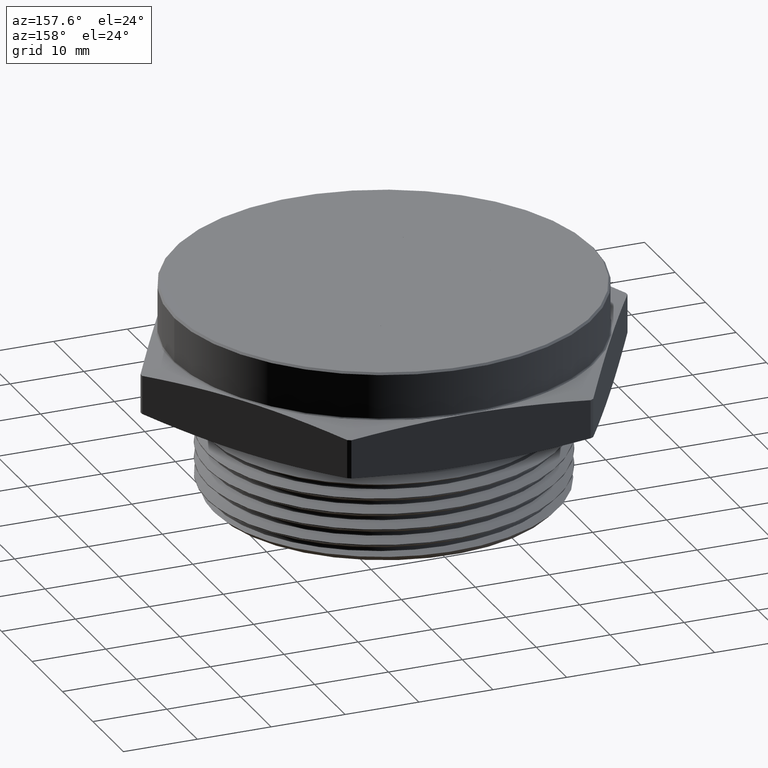
[diagram: clean part render]
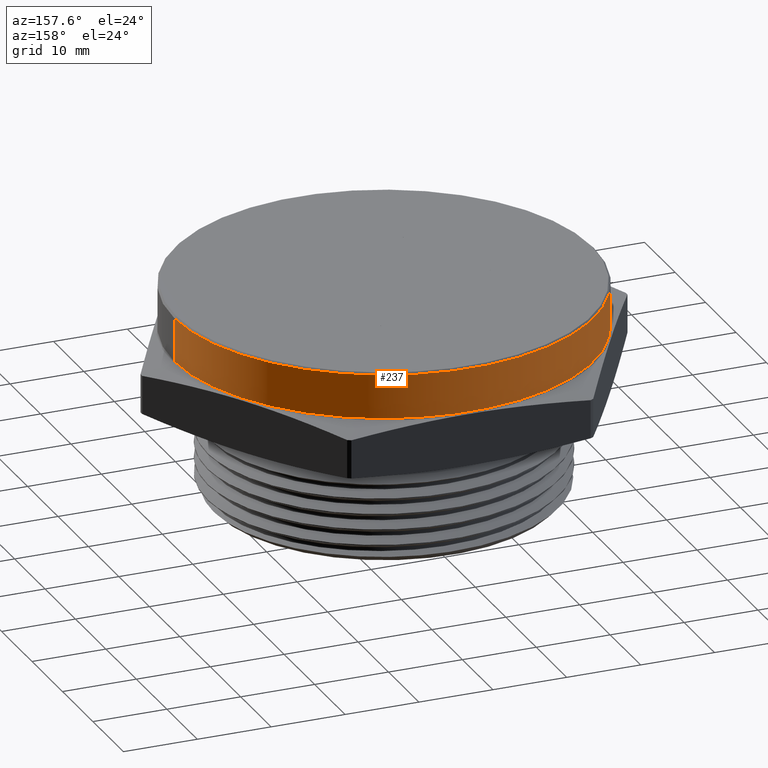
[diagram: same view with one face highlighted and labeled with its STEP entity id]
A machine part, auxiliary view. The second image highlights one B-rep face of the part: STEP entity #237.
In plain terms, the highlighted cylindrical surface (partial cylindrical patch) has radius 28.3845 mm, axis along (-0, -0, -1).
Its self-contained STEP definition (entity closure, byte-faithful):
#20 = ORIENTED_EDGE ( 'NONE', *, *, #653, .T. ) ;
#21 = ORIENTED_EDGE ( 'NONE', *, *, #655, .T. ) ;
#22 = ORIENTED_EDGE ( 'NONE', *, *, #656, .T. ) ;
#23 = ORIENTED_EDGE ( 'NONE', *, *, #657, .F. ) ;
#42 = VERTEX_POINT ( 'NONE', #2636 ) ;
#49 = VERTEX_POINT ( 'NONE', #2646 ) ;
#58 = VERTEX_POINT ( 'NONE', #2584 ) ;
#60 = VERTEX_POINT ( 'NONE', #2578 ) ;
#81 = EDGE_LOOP ( 'NONE', ( #20, #21, #22, #23 ) ) ;
#174 = VECTOR ( 'NONE', #2817, 39.37007874015748100 ) ;
#175 = LINE ( 'NONE', #2816, #178 ) ;
#176 = CIRCLE ( 'NONE', #406, 1.117500000000000200 ) ;
#178 = VECTOR ( 'NONE', #2810, 39.37007874015748100 ) ;
#237 = ADVANCED_FACE ( 'NONE', ( #314 ), #315, .T. ) ;
#314 = FACE_OUTER_BOUND ( 'NONE', #81, .T. ) ;
#315 = CYLINDRICAL_SURFACE ( 'NONE', #370, 1.117500000000000200 ) ;
#370 = AXIS2_PLACEMENT_3D ( 'NONE', #2685, #2684, #2686 ) ;
#405 = AXIS2_PLACEMENT_3D ( 'NONE', #2813, #2814, #2815 ) ;
#406 = AXIS2_PLACEMENT_3D ( 'NONE', #2819, #2820, #2821 ) ;
#514 = CIRCLE ( 'NONE', #405, 1.117500000000000200 ) ;
#517 = LINE ( 'NONE', #2811, #174 ) ;
#653 = EDGE_CURVE ( 'NONE', #60, #58, #514, .T. ) ;
#655 = EDGE_CURVE ( 'NONE', #58, #49, #517, .T. ) ;
#656 = EDGE_CURVE ( 'NONE', #49, #42, #176, .T. ) ;
#657 = EDGE_CURVE ( 'NONE', #60, #42, #175, .T. ) ;
#2578 = CARTESIAN_POINT ( 'NONE',  ( -1.117500000000000200, 0.0000000000000000000, 0.5200000000000000200 ) ) ;
#2584 = CARTESIAN_POINT ( 'NONE',  ( 1.117500000000000200, 1.368542798047167300E-016, 0.5200000000000000200 ) ) ;
#2636 = CARTESIAN_POINT ( 'NONE',  ( -1.117500000000000200, 0.0000000000000000000, 0.2864782722655603900 ) ) ;
#2646 = CARTESIAN_POINT ( 'NONE',  ( 1.117500000000000200, 1.368542798047167300E-016, 0.2864782722655602200 ) ) ;
#2684 = DIRECTION ( 'NONE',  ( -0.0000000000000000000, -0.0000000000000000000, -1.000000000000000000 ) ) ;
#2685 = CARTESIAN_POINT ( 'NONE',  ( 0.0000000000000000000, 0.0000000000000000000, 0.5300000000000000300 ) ) ;
#2686 = DIRECTION ( 'NONE',  ( -1.000000000000000000, 0.0000000000000000000, 0.0000000000000000000 ) ) ;
#2810 = DIRECTION ( 'NONE',  ( -0.0000000000000000000, -0.0000000000000000000, -1.000000000000000000 ) ) ;
#2811 = CARTESIAN_POINT ( 'NONE',  ( 1.117500000000000200, 1.368542798047167300E-016, 0.5300000000000000300 ) ) ;
#2813 = CARTESIAN_POINT ( 'NONE',  ( 0.0000000000000000000, 0.0000000000000000000, 0.5200000000000000200 ) ) ;
#2814 = DIRECTION ( 'NONE',  ( 0.0000000000000000000, 0.0000000000000000000, -1.000000000000000000 ) ) ;
#2815 = DIRECTION ( 'NONE',  ( 1.000000000000000000, 0.0000000000000000000, 0.0000000000000000000 ) ) ;
#2816 = CARTESIAN_POINT ( 'NONE',  ( -1.117500000000000200, 0.0000000000000000000, 0.5300000000000000300 ) ) ;
#2817 = DIRECTION ( 'NONE',  ( -0.0000000000000000000, -0.0000000000000000000, -1.000000000000000000 ) ) ;
#2819 = CARTESIAN_POINT ( 'NONE',  ( 0.0000000000000000000, 0.0000000000000000000, 0.2864782722655602700 ) ) ;
#2820 = DIRECTION ( 'NONE',  ( 6.123233995736748800E-017, 0.0000000000000000000, 1.000000000000000000 ) ) ;
#2821 = DIRECTION ( 'NONE',  ( 1.000000000000000000, 0.0000000000000000000, -6.111516764349581000E-017 ) ) ;